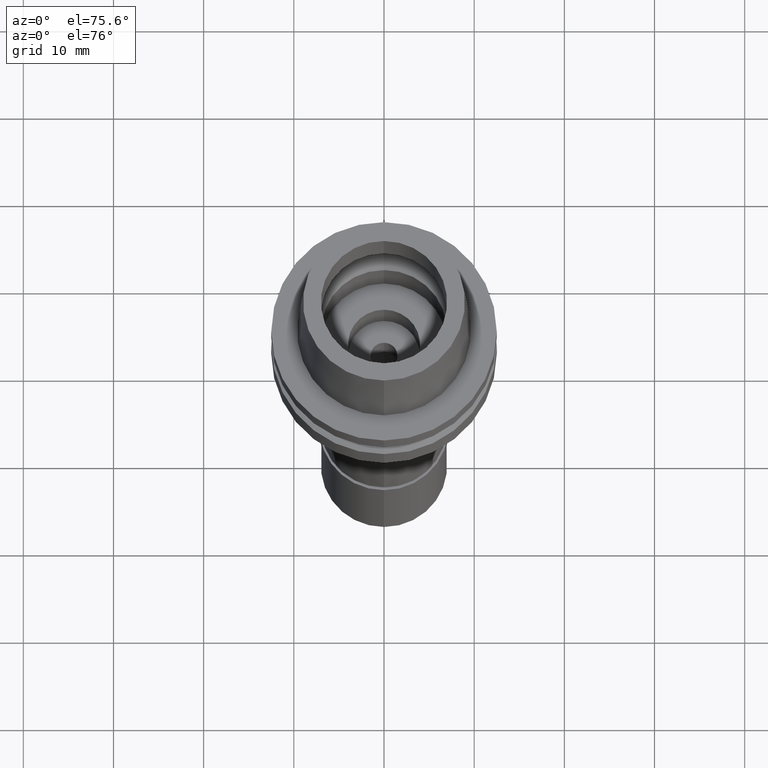
[diagram: clean part render]
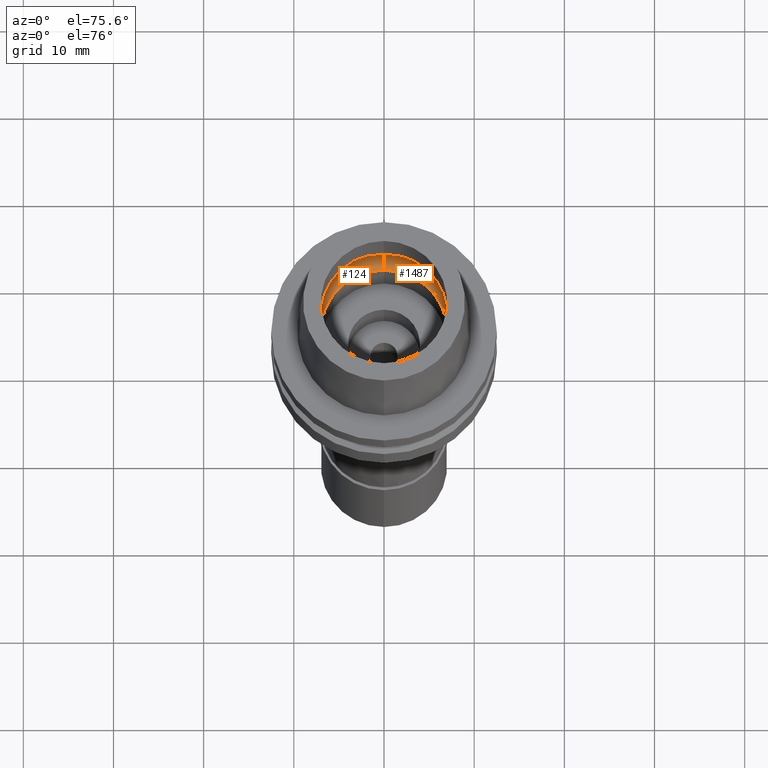
[diagram: same view with one multi-face feature highlighted, each face labeled with its STEP entity id]
A machine part, auxiliary view. The highlighted faces form ONE feature: a constant-radius fillet chain: 2 tangent blend faces with common blend radius 3 mm. The faces share edges in the B-rep.
Their STEP definitions:
[1] entity #124 (Torus):
#8 = DIRECTION ( 'NONE',  ( 0.0000000000000000000, -1.000000000000000000, 0.0000000000000000000 ) ) ;
#124 = ADVANCED_FACE ( 'NONE', ( #1011 ), #848, .F. ) ;
#149 = CARTESIAN_POINT ( 'NONE',  ( 0.0000000000000000000, 8.200000000000001066, 2.449999999999999734 ) ) ;
#160 = VERTEX_POINT ( 'NONE', #2476 ) ;
#210 = ORIENTED_EDGE ( 'NONE', *, *, #2461, .F. ) ;
#240 = CIRCLE ( 'NONE', #978, 3.000000000000000000 ) ;
#253 = CARTESIAN_POINT ( 'NONE',  ( 0.0000000000000000000, 0.0000000000000000000, 2.449999999999999734 ) ) ;
#393 = CARTESIAN_POINT ( 'NONE',  ( 0.0000000000000000000, 0.0000000000000000000, 2.449999999999999734 ) ) ;
#471 = EDGE_CURVE ( 'NONE', #160, #738, #1752, .T. ) ;
#584 = CARTESIAN_POINT ( 'NONE',  ( 0.0000000000000000000, 0.0000000000000000000, 0.05000000000000000278 ) ) ;
#738 = VERTEX_POINT ( 'NONE', #149 ) ;
#848 = TOROIDAL_SURFACE ( 'NONE', #1069, 5.200000000000000178, 3.000000000000000000 ) ;
#936 = AXIS2_PLACEMENT_3D ( 'NONE', #584, #2655, #1976 ) ;
#978 = AXIS2_PLACEMENT_3D ( 'NONE', #2197, #1779, #1362 ) ;
#985 = DIRECTION ( 'NONE',  ( 0.0000000000000000000, 1.000000000000000000, 0.0000000000000000000 ) ) ;
#1011 = FACE_OUTER_BOUND ( 'NONE', #2637, .T. ) ;
#1020 = CIRCLE ( 'NONE', #2206, 3.000000000000000000 ) ;
#1035 = EDGE_CURVE ( 'NONE', #1596, #738, #1020, .T. ) ;
#1047 = ORIENTED_EDGE ( 'NONE', *, *, #1035, .T. ) ;
#1069 = AXIS2_PLACEMENT_3D ( 'NONE', #393, #1225, #985 ) ;
#1225 = DIRECTION ( 'NONE',  ( 0.0000000000000000000, 0.0000000000000000000, 1.000000000000000000 ) ) ;
#1256 = CARTESIAN_POINT ( 'NONE',  ( 0.0000000000000000000, -7.000000000000000000, 0.05000000000000000278 ) ) ;
#1362 = DIRECTION ( 'NONE',  ( 0.0000000000000000000, -0.5999999999999998668, -0.8000000000000001554 ) ) ;
#1538 = AXIS2_PLACEMENT_3D ( 'NONE', #253, #2520, #8 ) ;
#1596 = VERTEX_POINT ( 'NONE', #1698 ) ;
#1698 = CARTESIAN_POINT ( 'NONE',  ( 0.0000000000000000000, 7.000000000000000000, 0.05000000000000000278 ) ) ;
#1752 = CIRCLE ( 'NONE', #1538, 8.200000000000001066 ) ;
#1779 = DIRECTION ( 'NONE',  ( -1.000000000000000000, 0.0000000000000000000, 0.0000000000000000000 ) ) ;
#1851 = CARTESIAN_POINT ( 'NONE',  ( 0.0000000000000000000, 5.200000000000000178, 2.449999999999999734 ) ) ;
#1976 = DIRECTION ( 'NONE',  ( 0.0000000000000000000, 1.000000000000000000, 0.0000000000000000000 ) ) ;
#2093 = DIRECTION ( 'NONE',  ( 0.0000000000000000000, 0.5999999999999998668, -0.8000000000000001554 ) ) ;
#2152 = VERTEX_POINT ( 'NONE', #1256 ) ;
#2180 = ORIENTED_EDGE ( 'NONE', *, *, #471, .F. ) ;
#2196 = ORIENTED_EDGE ( 'NONE', *, *, #2480, .F. ) ;
#2197 = CARTESIAN_POINT ( 'NONE',  ( 0.0000000000000000000, -5.200000000000000178, 2.449999999999999734 ) ) ;
#2206 = AXIS2_PLACEMENT_3D ( 'NONE', #1851, #2301, #2093 ) ;
#2260 = CIRCLE ( 'NONE', #936, 7.000000000000000000 ) ;
#2301 = DIRECTION ( 'NONE',  ( 1.000000000000000000, 0.0000000000000000000, 0.0000000000000000000 ) ) ;
#2461 = EDGE_CURVE ( 'NONE', #2152, #160, #240, .T. ) ;
#2476 = CARTESIAN_POINT ( 'NONE',  ( 0.0000000000000000000, -8.200000000000001066, 2.449999999999999734 ) ) ;
#2480 = EDGE_CURVE ( 'NONE', #1596, #2152, #2260, .T. ) ;
#2520 = DIRECTION ( 'NONE',  ( 0.0000000000000000000, 0.0000000000000000000, -1.000000000000000000 ) ) ;
#2637 = EDGE_LOOP ( 'NONE', ( #2180, #210, #2196, #1047 ) ) ;
#2655 = DIRECTION ( 'NONE',  ( 0.0000000000000000000, 0.0000000000000000000, 1.000000000000000000 ) ) ;
[2] entity #1487 (Torus):
#126 = ORIENTED_EDGE ( 'NONE', *, *, #2461, .T. ) ;
#149 = CARTESIAN_POINT ( 'NONE',  ( 0.0000000000000000000, 8.200000000000001066, 2.449999999999999734 ) ) ;
#160 = VERTEX_POINT ( 'NONE', #2476 ) ;
#240 = CIRCLE ( 'NONE', #978, 3.000000000000000000 ) ;
#375 = ORIENTED_EDGE ( 'NONE', *, *, #2337, .F. ) ;
#700 = DIRECTION ( 'NONE',  ( 0.0000000000000000000, 0.0000000000000000000, -1.000000000000000000 ) ) ;
#738 = VERTEX_POINT ( 'NONE', #149 ) ;
#978 = AXIS2_PLACEMENT_3D ( 'NONE', #2197, #1779, #1362 ) ;
#1020 = CIRCLE ( 'NONE', #2206, 3.000000000000000000 ) ;
#1035 = EDGE_CURVE ( 'NONE', #1596, #738, #1020, .T. ) ;
#1058 = DIRECTION ( 'NONE',  ( 0.0000000000000000000, 1.000000000000000000, 0.0000000000000000000 ) ) ;
#1112 = DIRECTION ( 'NONE',  ( 0.0000000000000000000, 1.000000000000000000, 0.0000000000000000000 ) ) ;
#1202 = AXIS2_PLACEMENT_3D ( 'NONE', #1749, #700, #1112 ) ;
#1256 = CARTESIAN_POINT ( 'NONE',  ( 0.0000000000000000000, -7.000000000000000000, 0.05000000000000000278 ) ) ;
#1362 = DIRECTION ( 'NONE',  ( 0.0000000000000000000, -0.5999999999999998668, -0.8000000000000001554 ) ) ;
#1483 = DIRECTION ( 'NONE',  ( 0.0000000000000000000, 0.0000000000000000000, 1.000000000000000000 ) ) ;
#1487 = ADVANCED_FACE ( 'NONE', ( #2421 ), #2594, .F. ) ;
#1547 = CIRCLE ( 'NONE', #1634, 7.000000000000000000 ) ;
#1573 = ORIENTED_EDGE ( 'NONE', *, *, #1035, .F. ) ;
#1596 = VERTEX_POINT ( 'NONE', #1698 ) ;
#1634 = AXIS2_PLACEMENT_3D ( 'NONE', #2074, #1483, #1842 ) ;
#1698 = CARTESIAN_POINT ( 'NONE',  ( 0.0000000000000000000, 7.000000000000000000, 0.05000000000000000278 ) ) ;
#1749 = CARTESIAN_POINT ( 'NONE',  ( 0.0000000000000000000, 0.0000000000000000000, 2.449999999999999734 ) ) ;
#1779 = DIRECTION ( 'NONE',  ( -1.000000000000000000, 0.0000000000000000000, 0.0000000000000000000 ) ) ;
#1784 = CARTESIAN_POINT ( 'NONE',  ( 0.0000000000000000000, 0.0000000000000000000, 2.449999999999999734 ) ) ;
#1810 = CIRCLE ( 'NONE', #1202, 8.200000000000001066 ) ;
#1842 = DIRECTION ( 'NONE',  ( 0.0000000000000000000, -1.000000000000000000, 0.0000000000000000000 ) ) ;
#1851 = CARTESIAN_POINT ( 'NONE',  ( 0.0000000000000000000, 5.200000000000000178, 2.449999999999999734 ) ) ;
#1889 = AXIS2_PLACEMENT_3D ( 'NONE', #1784, #2496, #1058 ) ;
#2074 = CARTESIAN_POINT ( 'NONE',  ( 0.0000000000000000000, 0.0000000000000000000, 0.05000000000000000278 ) ) ;
#2093 = DIRECTION ( 'NONE',  ( 0.0000000000000000000, 0.5999999999999998668, -0.8000000000000001554 ) ) ;
#2152 = VERTEX_POINT ( 'NONE', #1256 ) ;
#2162 = EDGE_CURVE ( 'NONE', #2152, #1596, #1547, .T. ) ;
#2192 = EDGE_LOOP ( 'NONE', ( #2463, #126, #375, #1573 ) ) ;
#2197 = CARTESIAN_POINT ( 'NONE',  ( 0.0000000000000000000, -5.200000000000000178, 2.449999999999999734 ) ) ;
#2206 = AXIS2_PLACEMENT_3D ( 'NONE', #1851, #2301, #2093 ) ;
#2301 = DIRECTION ( 'NONE',  ( 1.000000000000000000, 0.0000000000000000000, 0.0000000000000000000 ) ) ;
#2337 = EDGE_CURVE ( 'NONE', #738, #160, #1810, .T. ) ;
#2421 = FACE_OUTER_BOUND ( 'NONE', #2192, .T. ) ;
#2461 = EDGE_CURVE ( 'NONE', #2152, #160, #240, .T. ) ;
#2463 = ORIENTED_EDGE ( 'NONE', *, *, #2162, .F. ) ;
#2476 = CARTESIAN_POINT ( 'NONE',  ( 0.0000000000000000000, -8.200000000000001066, 2.449999999999999734 ) ) ;
#2496 = DIRECTION ( 'NONE',  ( 0.0000000000000000000, 0.0000000000000000000, 1.000000000000000000 ) ) ;
#2594 = TOROIDAL_SURFACE ( 'NONE', #1889, 5.200000000000000178, 3.000000000000000000 ) ;